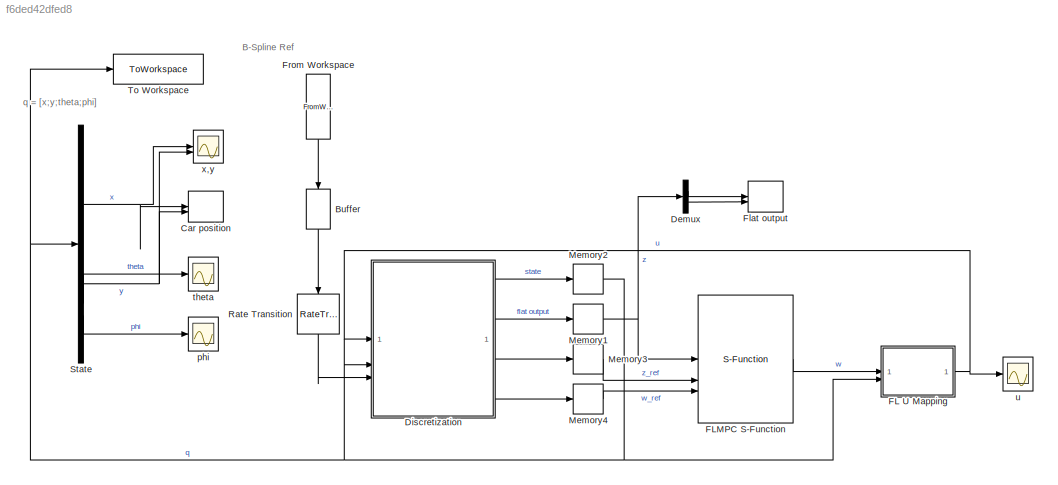
MODEL slx_f6ded42dfed8
KIND model
CONFIG AbsTol = auto
CONFIG EnableMultiTasking = off
CONFIG FixedStep = 0.1
CONFIG MaxStep = auto
CONFIG MinStep = auto
CONFIG RelTol = 1e-3
CONFIG SampleTimeConstraint = Unconstrained
CONFIG SolverName = ode1
CONFIG StartTime = 0.0
CONFIG StopTime = inf
BLOCK [Buffer] Buffer
  N = 54
  NameLocation = left
  OutputFrames = off
BLOCK [Record] Car position
  CompatibilityTag = XY
  FileSettingsInternal = {"entries":[{"content":{"excelSettings":{"content":{},"type":"Streamout.ExcelSettings"}},"type":"Streamout.FileSettingStorage","uuid":""}],"packageUris":["http:\/\/schema.mathworks.com\/mf0\/streamout_blocks\/R2020a"],"version":"1.0"}
  Layout = [1 1]
  SignalsInternal = {"entries":[{"content":{"signals":[{"content":{"blockPath":[],"dimensions":[1,1],"domain":"","lineColor":"#a2142f","plots":[1],"port":1,"sid":[""],"signalID":95310,"signalName":"x"},"type":"RecordBlkView.Signal","uuid":""},{"content":{"blockPath":[],"dimensions":[1,1],"domain":"","lineColor":"#139fff","plots":[1],"port":2,"sid":[""],"signalID":95314,"signalName":"y"},"type":"RecordBlkView.Signal",...<+156ch>
  VisualizationBindings = {"xyplotplugin":{"info":[{"series":[{"bindingParametersList":[{"parameter":"X-Axis","signalID":95310,"signalName":"x"},{"parameter":"Y-Axis","signalID":95314,"signalName":"y"}],"seriesID":26001}],"subplotID":1}]}}
BLOCK [Demux] Demux
  Outputs = 2
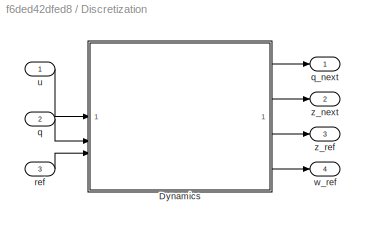
BLOCK [SubSystem] Discretization
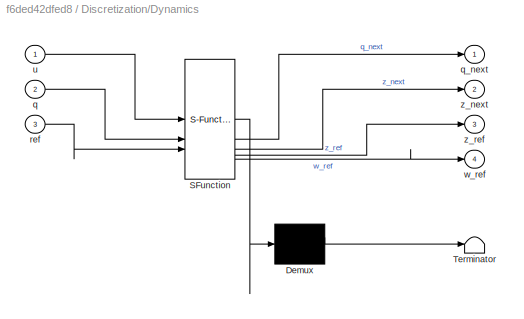
BLOCK [SubSystem] Discretization/Dynamics
  ErrorFcn = Stateflow.Translate.translate
  LibrarySourceBlock = simulink/User-Defined\nFunctions/MATLAB Function
  PermitHierarchicalResolution = ExplicitOnly
  SFBlockType = MATLAB Function
  TreatAsAtomicUnit = on
BLOCK [Demux] Discretization/Dynamics/ Demux 
  Outputs = 1
BLOCK [S-Function] Discretization/Dynamics/ SFunction 
  EnableBusSupport = on
  FunctionName = sf_sfun
  PortCounts = [3 5]
  SFcnIsStateOwnerBlock = off
  SFunctionDeploymentMode = off
  Tag = Stateflow S-Function 2
BLOCK [Terminator] Discretization/Dynamics/ Terminator 
BLOCK [Inport] Discretization/Dynamics/q
  Port = 2
BLOCK [Outport] Discretization/Dynamics/q_next
BLOCK [Inport] Discretization/Dynamics/ref
  Port = 3
BLOCK [Inport] Discretization/Dynamics/u
BLOCK [Outport] Discretization/Dynamics/w_ref
  Port = 4
BLOCK [Outport] Discretization/Dynamics/z_next
  Port = 2
BLOCK [Outport] Discretization/Dynamics/z_ref
  Port = 3
BLOCK [Inport] Discretization/q
  Port = 2
  SampleTime = 0.1
BLOCK [Outport] Discretization/q_next
  PortDimensions = [4,1]
  SampleTime = 0.1
BLOCK [Inport] Discretization/ref
  Port = 3
  SampleTime = 0.1
BLOCK [Inport] Discretization/u
  SampleTime = 0.1
BLOCK [Outport] Discretization/w_ref
  Port = 4
  PortDimensions = [2,5]
  SampleTime = 0.1
BLOCK [Outport] Discretization/z_next
  Port = 2
  PortDimensions = [2,1]
  SampleTime = 0.1
BLOCK [Outport] Discretization/z_ref
  Port = 3
  PortDimensions = [2,6]
  SampleTime = 0.1
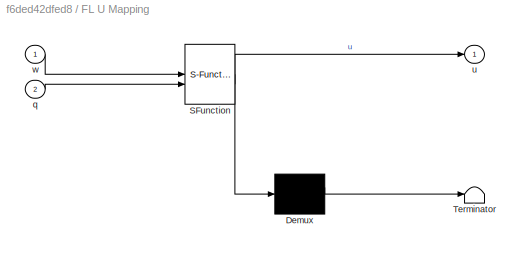
BLOCK [SubSystem] FL U Mapping
  ErrorFcn = Stateflow.Translate.translate
  LibrarySourceBlock = simulink/User-Defined\nFunctions/MATLAB Function
  PermitHierarchicalResolution = ExplicitOnly
  SFBlockType = MATLAB Function
  SystemSampleTime = 0.1
  TreatAsAtomicUnit = on
BLOCK [Demux] FL U Mapping/ Demux 
  Outputs = 1
BLOCK [S-Function] FL U Mapping/ SFunction 
  EnableBusSupport = on
  FunctionName = sf_sfun
  PortCounts = [2 2]
  SFcnIsStateOwnerBlock = off
  SFunctionDeploymentMode = off
  Tag = Stateflow S-Function 1
BLOCK [Terminator] FL U Mapping/ Terminator 
BLOCK [Inport] FL U Mapping/q
  Port = 2
BLOCK [Outport] FL U Mapping/u
BLOCK [Inport] FL U Mapping/w
BLOCK [S-Function] FLMPC S-Function
  EnableBusSupport = off
  FunctionName = casadi_fun
  Parameters = 'flmpc_fun.casadi','flmpc_fun'
  SFcnIsStateOwnerBlock = off
  SFunctionDeploymentMode = off
BLOCK [Record] Flat output
  CompatibilityTag = XY
  FileSettingsInternal = {"entries":[{"content":{"excelSettings":{"content":{},"type":"Streamout.ExcelSettings"}},"type":"Streamout.FileSettingStorage","uuid":""}],"packageUris":["http:\/\/schema.mathworks.com\/mf0\/streamout_blocks\/R2020a"],"version":"1.0"}
  Layout = [1 1]
  SignalsInternal = {"entries":[{"content":{"signals":[{"content":{"blockPath":[],"dimensions":[1,1],"domain":"","lineColor":"#a2142f","plots":[1],"port":1,"sid":[""],"signalID":95318,"signalName":"Demux:1"},"type":"RecordBlkView.Signal","uuid":""},{"content":{"blockPath":[],"dimensions":[1,1],"domain":"","lineColor":"#139fff","plots":[1],"port":2,"sid":[""],"signalID":95322,"signalName":"Demux:2"},"type":"RecordBlkV...<+168ch>
  VisualizationBindings = {"xyplotplugin":{"info":[{"series":[{"bindingParametersList":[{"parameter":"X-Axis","signalID":95318,"signalName":"Demux:1"},{"parameter":"Y-Axis","signalID":95322,"signalName":"Demux:2"}],"seriesID":16414}],"subplotID":1}]}}
BLOCK [FromWorkspace] From Workspace
  NameLocation = left
  SampleTime = 0.1
  VariableName = ref
  ZeroCross = off
BLOCK [Memory] Memory1
  InheritSampleTime = on
BLOCK [Memory] Memory2
  InheritSampleTime = on
BLOCK [Memory] Memory3
  InheritSampleTime = on
BLOCK [Memory] Memory4
  InheritSampleTime = on
BLOCK [RateTransition] Rate Transition
  NameLocation = left
  OutPortSampleTime = 0.1
BLOCK [Demux] State
BLOCK [ToWorkspace] To Workspace
  FixptAsFi = on
  MaxDataPoints = inf
  SampleTime = -1
  SaveFormat = Timeseries
  VariableName = q_flmpc
BLOCK [Scope] phi
  Floating = off
  NumInputPorts = 1
  ScopeSpecificationString = Simulink.scopes.TimeScopeBlockCfg('CurrentConfiguration', extmgr.ConfigurationSet(extmgr.Configuration('Core','General UI',true),extmgr.Configuration('Core','Source UI',true),extmgr.Configuration('Sources','WiredSimulink',true,'DataLoggingVariableName','ScopeData2'),extmgr.Configuration('Visuals','Time Domain',true,'SerializedDisplays',{struct('MinYLimReal','-0.51846','MaxYLimReal','0.81717','YLab...<+1387ch>
BLOCK [Scope] theta
  Floating = off
  NumInputPorts = 1
  ScopeSpecificationString = Simulink.scopes.TimeScopeBlockCfg('CurrentConfiguration', extmgr.ConfigurationSet(extmgr.Configuration('Core','General UI',true,'FigureColor',[1 1 1]),extmgr.Configuration('Core','Source UI',true),extmgr.Configuration('Sources','WiredSimulink',true,'DataLoggingVariableName','ScopeData1'),extmgr.Configuration('Visuals','Time Domain',true,'PlotType','Line','SerializedDisplays',{struct('MinYLimReal',...<+1612ch>
BLOCK [Scope] u
  Floating = off
  NumInputPorts = 1
  ScopeSpecificationString = Simulink.scopes.TimeScopeBlockCfg('CurrentConfiguration', extmgr.ConfigurationSet(extmgr.Configuration('Core','General UI',true,'FigureColor',[1 1 1]),extmgr.Configuration('Core','Source UI',true),extmgr.Configuration('Sources','WiredSimulink',true,'DataLoggingVariableName','ScopeData4'),extmgr.Configuration('Visuals','Time Domain',true,'SerializedDisplays',{struct('MinYLimReal','-1.83752','MaxYLi...<+1701ch>
BLOCK [Scope] x,y
  Floating = off
  NumInputPorts = 2
  ScopeSpecificationString = Simulink.scopes.TimeScopeBlockCfg('CurrentConfiguration', extmgr.ConfigurationSet(extmgr.Configuration('Core','General UI',true),extmgr.Configuration('Core','Source UI',true),extmgr.Configuration('Sources','WiredSimulink',true),extmgr.Configuration('Visuals','Time Domain',true,'SerializedDisplays',{struct('MinYLimReal','-0.31434','MaxYLimReal','2.82902','YLabelReal','','MinYLimMag','0.00000','MaxY...<+1350ch>
ANNOTATION (root): B-Spline Ref
ANNOTATION (root): q = [x;y;theta;phi]
LINE Buffer:1 -> Rate Transition:1
LINE Demux:1 -> Flat output:1
LINE Demux:2 -> Flat output:2
LINE Discretization/Dynamics:1 -> Discretization/q_next:1
LINE Discretization/Dynamics:2 -> Discretization/z_next:1
LINE Discretization/Dynamics:3 -> Discretization/z_ref:1
LINE Discretization/Dynamics:4 -> Discretization/w_ref:1
LINE Discretization/q:1 -> Discretization/Dynamics:2
LINE Discretization/ref:1 -> Discretization/Dynamics:3
LINE Discretization/u:1 -> Discretization/Dynamics:1
LINE Discretization:1 -> Memory2:1
LINE Discretization:2 -> Memory1:1
LINE Discretization:3 -> Memory3:1
LINE Discretization:4 -> Memory4:1
NET FL U Mapping:1 -> Discretization:1, u:1
LINE FLMPC S-Function:1 -> FL U Mapping:1
LINE From Workspace:1 -> Buffer:1
NET Memory1:1 -> Demux:1, FLMPC S-Function:1
NET Memory2:1 -> Discretization:2, FL U Mapping:2, State:1, To Workspace:1
LINE Memory3:1 -> FLMPC S-Function:2
LINE Memory4:1 -> FLMPC S-Function:3
LINE Rate Transition:1 -> Discretization:3
NET State:1 -> Car position:1, x,y:1
NET State:2 -> Car position:2, x,y:2
LINE State:3 -> theta:1
LINE State:4 -> phi:1
note: NET lines group one-source signal fan-out (src -> all destinations, sorted); 1:1 wires keep LINE
CHART FL U Mapping states=1 transitions=1
  STATE_LABEL 'eML_blk_kernel()'
  STATE_LABEL 'SCRIPT:\nfunction u = mapping(w, q)\n\nDelta = 0.35;\nL = 0.256;\neta = [q(3); q(4)];\ns1 = sin(eta(1)+eta(2)); c1 = cos(eta(1)+eta(2)); \nM = [cos(eta(1))-tan(eta(2))*(sin(eta(1))+Delta*s1/L), -Delta*s1;\n     sin(eta(1))+tan(eta(2))*(cos(eta(1))+Delta*c1/L),  Delta*c1];\n\nu = M^(-1) * w(:, 1);\n\nend\n'
CHART Discretization/Dynamics states=1 transitions=1
  STATE_LABEL 'eML_blk_kernel()'
  STATE_LABEL 'SCRIPT:\nfunction [q_next, z_next, z_ref, w_ref] = discrete_plant(u, q, ref)\n    persistent idx z_ref_internal;\n\n    if isempty(idx)\n        idx = 1;\n    end\n\n    if isempty(z_ref_internal)\n        z_ref_internal = zeros(2,1);\n    end\n\n    % Parameters\n    Npred = 5;\n    l = 0.256;\n    L = l;\n    Delta = 0.35;\n    dt = 0.1;  \n    \n    %% Next flat output\n    x = q(1);\n    y = q(2);\n    theta = q(3)...<+2691ch>'
CHART  states=0 transitions=0
CHART  states=0 transitions=0
